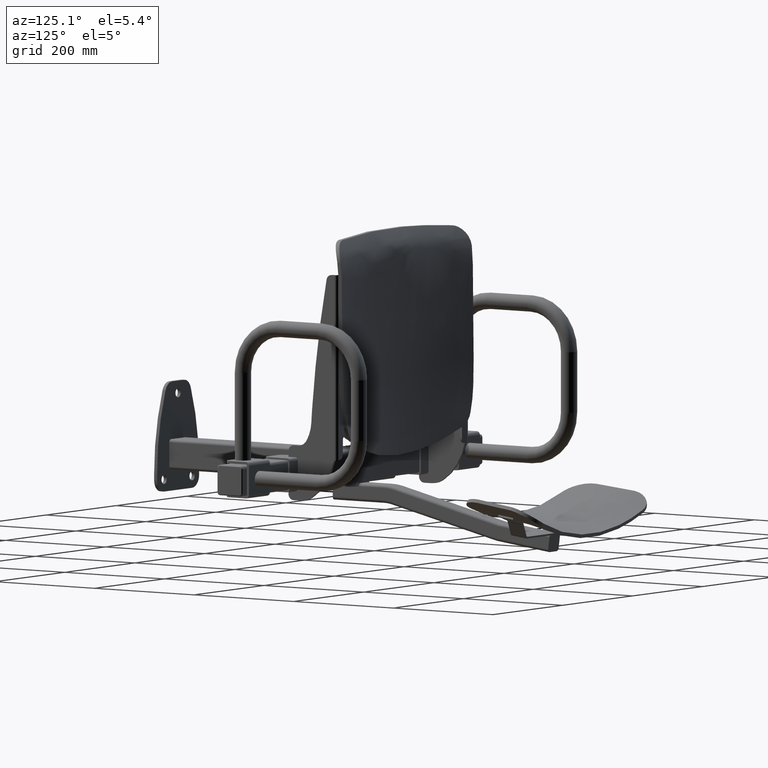
[diagram: clean part render]
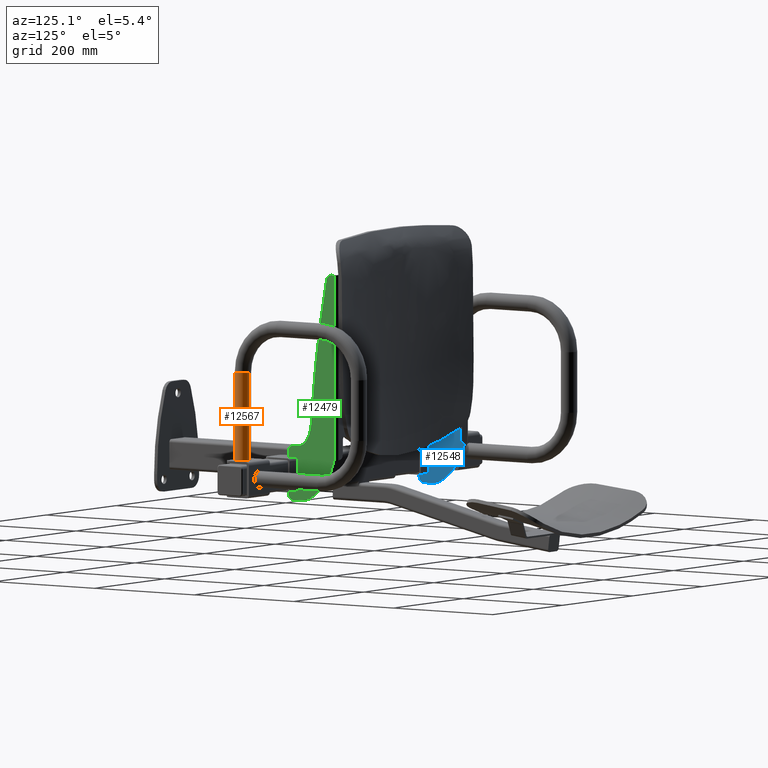
[diagram: same view with three faces highlighted in distinct colors, each labeled with its STEP entity id]
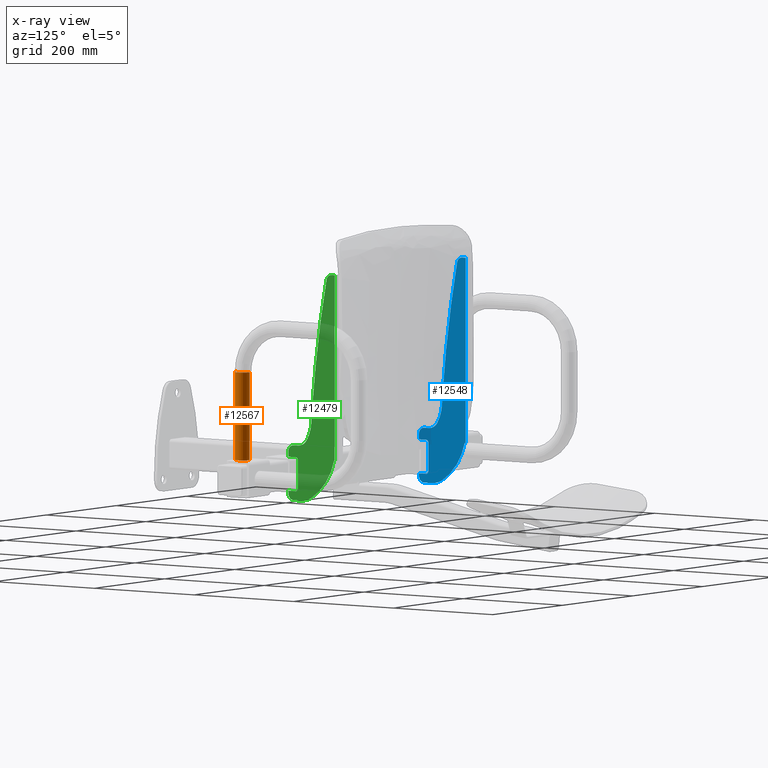
[diagram: x-ray of the same camera — body ghosted, the three highlighted faces saturated]
A machine part, auxiliary view with three faces highlighted in distinct colors.
The next image is the same camera in x-ray (body ghosted, the three faces saturated) — at least one of them is partly hidden behind the body in this view.
Their STEP definitions:

[orange] entity #12567 — the highlighted cylindrical surface (edge-blend (fillet) strip) has radius 13.5 mm, axis along (0, -0, -1).
#457 = AXIS2_PLACEMENT_3D ( 'NONE', #4366, #4362, #4364 ) ;
#3739 = EDGE_CURVE ( 'NONE', #13186, #13163, #6519, .T. ) ;
#3756 = EDGE_CURVE ( 'NONE', #13163, #13146, #6541, .T. ) ;
#3757 = EDGE_CURVE ( 'NONE', #5343, #13146, #6547, .T. ) ;
#3758 = EDGE_CURVE ( 'NONE', #13186, #5343, #6545, .T. ) ;
#4362 = DIRECTION ( 'NONE',  ( 0.0000000000000000000, -9.570888143320350200E-017, -1.000000000000000000 ) ) ;
#4364 = DIRECTION ( 'NONE',  ( 0.0000000000000000000, 1.000000000000000000, 0.0000000000000000000 ) ) ;
#4366 = CARTESIAN_POINT ( 'NONE',  ( 0.0000000000000000000, -28.99999999999999600, 174.9999999999994600 ) ) ;
#4793 = CARTESIAN_POINT ( 'NONE',  ( 1.653273178848928000E-015, -42.50000000000000700, 29.99999999999943900 ) ) ;
#4809 = CARTESIAN_POINT ( 'NONE',  ( 1.653273178848927300E-015, -42.49999999999999300, 174.9999999999989200 ) ) ;
#4832 = CARTESIAN_POINT ( 'NONE',  ( 0.0000000000000000000, -15.49999999999999800, 175.0000000000000300 ) ) ;
#5343 = VERTEX_POINT ( 'NONE', #15613 ) ;
#6254 = EDGE_LOOP ( 'NONE', ( #7528, #7527, #7526, #7525 ) ) ;
#6519 = CIRCLE ( 'NONE', #14111, 13.50000000000000000 ) ;
#6541 = LINE ( 'NONE', #6633, #6548 ) ;
#6545 = LINE ( 'NONE', #6644, #6551 ) ;
#6547 = CIRCLE ( 'NONE', #14118, 13.50000000000000000 ) ;
#6548 = VECTOR ( 'NONE', #6641, 1000.000000000000000 ) ;
#6551 = VECTOR ( 'NONE', #6639, 1000.000000000000000 ) ;
#6633 = CARTESIAN_POINT ( 'NONE',  ( 1.653273178848926900E-015, -42.49999999999999300, 174.9999999999994600 ) ) ;
#6639 = DIRECTION ( 'NONE',  ( 0.0000000000000000000, -9.570888143320350200E-017, -1.000000000000000000 ) ) ;
#6641 = DIRECTION ( 'NONE',  ( 0.0000000000000000000, -9.570888143320350200E-017, -1.000000000000000000 ) ) ;
#6644 = CARTESIAN_POINT ( 'NONE',  ( 0.0000000000000000000, -15.49999999999999800, 174.9999999999994600 ) ) ;
#6645 = CARTESIAN_POINT ( 'NONE',  ( 0.0000000000000000000, -29.00000000000001100, 30.00000000000000000 ) ) ;
#6646 = DIRECTION ( 'NONE',  ( 0.0000000000000000000, 4.133864410110875200E-014, -1.000000000000000000 ) ) ;
#6647 = DIRECTION ( 'NONE',  ( 0.0000000000000000000, 1.000000000000000000, 4.137636735292828500E-014 ) ) ;
#7525 = ORIENTED_EDGE ( 'NONE', *, *, #3758, .F. ) ;
#7526 = ORIENTED_EDGE ( 'NONE', *, *, #3757, .F. ) ;
#7527 = ORIENTED_EDGE ( 'NONE', *, *, #3756, .T. ) ;
#7528 = ORIENTED_EDGE ( 'NONE', *, *, #3739, .T. ) ;
#12567 = ADVANCED_FACE ( 'NONE', ( #13300 ), #13304, .T. ) ;
#13146 = VERTEX_POINT ( 'NONE', #4793 ) ;
#13163 = VERTEX_POINT ( 'NONE', #4809 ) ;
#13186 = VERTEX_POINT ( 'NONE', #4832 ) ;
#13300 = FACE_OUTER_BOUND ( 'NONE', #6254, .T. ) ;
#13304 = CYLINDRICAL_SURFACE ( 'NONE', #457, 13.50000000000000000 ) ;
#14111 = AXIS2_PLACEMENT_3D ( 'NONE', #22606, #22607, #22608 ) ;
#14118 = AXIS2_PLACEMENT_3D ( 'NONE', #6645, #6646, #6647 ) ;
#15613 = CARTESIAN_POINT ( 'NONE',  ( 0.0000000000000000000, -15.50000000000001200, 30.00000000000055800 ) ) ;
#22606 = CARTESIAN_POINT ( 'NONE',  ( 0.0000000000000000000, -28.99999999999999600, 174.9999999999994600 ) ) ;
#22607 = DIRECTION ( 'NONE',  ( 0.0000000000000000000, 4.133864410110875200E-014, -1.000000000000000000 ) ) ;
#22608 = DIRECTION ( 'NONE',  ( 0.0000000000000000000, 1.000000000000000000, 4.111937128241320600E-014 ) ) ;

[blue] entity #12548 — the highlighted planar face has unit normal (-1, 0, 0).
#436 = AXIS2_PLACEMENT_3D ( 'NONE', #4295, #4300, #4301 ) ;
#1841 = VERTEX_POINT ( 'NONE', #22451 ) ;
#1853 = VERTEX_POINT ( 'NONE', #22463 ) ;
#1856 = VERTEX_POINT ( 'NONE', #22466 ) ;
#1868 = VERTEX_POINT ( 'NONE', #22478 ) ;
#1872 = VERTEX_POINT ( 'NONE', #22482 ) ;
#1876 = VERTEX_POINT ( 'NONE', #22486 ) ;
#1878 = VERTEX_POINT ( 'NONE', #22488 ) ;
#1879 = VERTEX_POINT ( 'NONE', #22489 ) ;
#1881 = VERTEX_POINT ( 'NONE', #22491 ) ;
#3878 = LINE ( 'NONE', #12641, #3880 ) ;
#3879 = CIRCLE ( 'NONE', #6881, 10.00000000000000900 ) ;
#3880 = VECTOR ( 'NONE', #12642, 1000.000000000000000 ) ;
#3881 = CIRCLE ( 'NONE', #6882, 2000.000000000000000 ) ;
#3882 = CIRCLE ( 'NONE', #6883, 64.99999999999991500 ) ;
#3883 = CIRCLE ( 'NONE', #6884, 20.00000000000000400 ) ;
#3884 = LINE ( 'NONE', #12655, #3886 ) ;
#3885 = CIRCLE ( 'NONE', #6885, 10.00000000000000200 ) ;
#3886 = VECTOR ( 'NONE', #12656, 1000.000000000000000 ) ;
#3887 = LINE ( 'NONE', #12660, #3889 ) ;
#3888 = LINE ( 'NONE', #12670, #3891 ) ;
#3889 = VECTOR ( 'NONE', #12661, 1000.000000000000000 ) ;
#3890 = CIRCLE ( 'NONE', #6886, 5.000000000000000900 ) ;
#3891 = VECTOR ( 'NONE', #12671, 1000.000000000000000 ) ;
#3892 = LINE ( 'NONE', #12665, #3894 ) ;
#3893 = CIRCLE ( 'NONE', #6887, 5.000000000000000900 ) ;
#3894 = VECTOR ( 'NONE', #12666, 1000.000000000000000 ) ;
#3895 = LINE ( 'NONE', #12672, #3897 ) ;
#3896 = LINE ( 'NONE', #12682, #3899 ) ;
#3897 = VECTOR ( 'NONE', #12673, 1000.000000000000000 ) ;
#3898 = CIRCLE ( 'NONE', #6888, 10.00000000000000200 ) ;
#3899 = VECTOR ( 'NONE', #12683, 1000.000000000000000 ) ;
#3900 = LINE ( 'NONE', #12677, #3902 ) ;
#3901 = CIRCLE ( 'NONE', #6889, 40.00000000000000000 ) ;
#3902 = VECTOR ( 'NONE', #12678, 1000.000000000000000 ) ;
#3903 = CIRCLE ( 'NONE', #6890, 99.99999999999973000 ) ;
#4294 = PLANE ( 'NONE',  #436 ) ;
#4295 = CARTESIAN_POINT ( 'NONE',  ( -184.5000000000000000, 768.8487700016353300, 42.09000911109884400 ) ) ;
#4300 = DIRECTION ( 'NONE',  ( -1.000000000000000000, 0.0000000000000000000, 0.0000000000000000000 ) ) ;
#4301 = DIRECTION ( 'NONE',  ( 0.0000000000000000000, 0.0000000000000000000, 1.000000000000000000 ) ) ;
#4957 = CARTESIAN_POINT ( 'NONE',  ( -184.5000000000000000, 768.8487700016353300, 42.09000911109884400 ) ) ;
#4958 = DIRECTION ( 'NONE',  ( -1.000000000000000000, -0.0000000000000000000, -0.0000000000000000000 ) ) ;
#4959 = DIRECTION ( 'NONE',  ( 0.0000000000000000000, 0.0000000000000000000, 1.000000000000000000 ) ) ;
#5078 = CARTESIAN_POINT ( 'NONE',  ( -184.5000000000000000, -56.52131254699092000, 45.00000000000002100 ) ) ;
#5107 = CARTESIAN_POINT ( 'NONE',  ( -184.5000000000000000, -75.99999999999998600, 35.00000000000000700 ) ) ;
#5109 = CARTESIAN_POINT ( 'NONE',  ( -184.5000000000000000, -66.00000000000000000, -45.49999999999999300 ) ) ;
#5112 = CARTESIAN_POINT ( 'NONE',  ( -184.5000000000000000, -75.99999999999998600, 25.50000000000000700 ) ) ;
#5114 = CARTESIAN_POINT ( 'NONE',  ( -184.5000000000000000, -62.00000000000000000, 25.50000000000000400 ) ) ;
#5629 = CARTESIAN_POINT ( 'NONE',  ( -184.5000000000000000, 0.4346393196845710300, 321.8704615215368700 ) ) ;
#5639 = CARTESIAN_POINT ( 'NONE',  ( -184.4999999999999400, 10.25815059093826400, 330.0000000000000000 ) ) ;
#5668 = CARTESIAN_POINT ( 'NONE',  ( -184.5000000000000000, -57.00000000000000000, -25.49999999999999300 ) ) ;
#5669 = CARTESIAN_POINT ( 'NONE',  ( -184.4999999999999400, 17.61484380720982700, 330.0000000000000000 ) ) ;
#5689 = CARTESIAN_POINT ( 'NONE',  ( -184.5000000000000000, -29.85772430000087500, -39.60058345625546400 ) ) ;
#5693 = CARTESIAN_POINT ( 'NONE',  ( -184.5000000000000000, -76.00000000000000000, -30.49999999999998900 ) ) ;
#5698 = CARTESIAN_POINT ( 'NONE',  ( -184.5000000000000000, 15.49999999999968000, 24.00000000000002100 ) ) ;
#5953 = EDGE_CURVE ( 'NONE', #1876, #7651, #18069, .T. ) ;
#5954 = EDGE_CURVE ( 'NONE', #1876, #1872, #18077, .T. ) ;
#5955 = EDGE_CURVE ( 'NONE', #1872, #7622, #18063, .T. ) ;
#5997 = EDGE_CURVE ( 'NONE', #7592, #7622, #3878, .T. ) ;
#5998 = EDGE_CURVE ( 'NONE', #7592, #7582, #3879, .T. ) ;
#5999 = EDGE_CURVE ( 'NONE', #7582, #1881, #3881, .T. ) ;
#6000 = EDGE_CURVE ( 'NONE', #7849, #1878, #3882, .T. ) ;
#6001 = EDGE_CURVE ( 'NONE', #1878, #21709, #3883, .T. ) ;
#6002 = EDGE_CURVE ( 'NONE', #21709, #1856, #3884, .T. ) ;
#6003 = EDGE_CURVE ( 'NONE', #1856, #21738, #3885, .T. ) ;
#6004 = EDGE_CURVE ( 'NONE', #21738, #21743, #3887, .T. ) ;
#6005 = EDGE_CURVE ( 'NONE', #21743, #21745, #3888, .T. ) ;
#6006 = EDGE_CURVE ( 'NONE', #21745, #1841, #3890, .T. ) ;
#6007 = EDGE_CURVE ( 'NONE', #1841, #7621, #3892, .T. ) ;
#6008 = EDGE_CURVE ( 'NONE', #7621, #1853, #3893, .T. ) ;
#6009 = EDGE_CURVE ( 'NONE', #1853, #7646, #3895, .T. ) ;
#6010 = EDGE_CURVE ( 'NONE', #7646, #1879, #3896, .T. ) ;
#6011 = EDGE_CURVE ( 'NONE', #1879, #21740, #3898, .T. ) ;
#6012 = EDGE_CURVE ( 'NONE', #21740, #1868, #3900, .T. ) ;
#6013 = EDGE_CURVE ( 'NONE', #1868, #7642, #3901, .T. ) ;
#6014 = EDGE_CURVE ( 'NONE', #7642, #7651, #3903, .T. ) ;
#6881 = AXIS2_PLACEMENT_3D ( 'NONE', #12649, #12650, #12651 ) ;
#6882 = AXIS2_PLACEMENT_3D ( 'NONE', #12652, #12653, #12654 ) ;
#6883 = AXIS2_PLACEMENT_3D ( 'NONE', #12657, #12658, #12659 ) ;
#6884 = AXIS2_PLACEMENT_3D ( 'NONE', #12662, #12663, #12664 ) ;
#6885 = AXIS2_PLACEMENT_3D ( 'NONE', #12667, #12668, #12669 ) ;
#6886 = AXIS2_PLACEMENT_3D ( 'NONE', #12674, #12675, #12676 ) ;
#6887 = AXIS2_PLACEMENT_3D ( 'NONE', #12679, #12680, #12681 ) ;
#6888 = AXIS2_PLACEMENT_3D ( 'NONE', #12684, #12685, #12686 ) ;
#6889 = AXIS2_PLACEMENT_3D ( 'NONE', #12687, #12688, #12689 ) ;
#6890 = AXIS2_PLACEMENT_3D ( 'NONE', #12690, #12691, #12692 ) ;
#7428 = CARTESIAN_POINT ( 'NONE',  ( -184.5000000000000000, -29.99960903027743000, 85.00000000000001400 ) ) ;
#7582 = VERTEX_POINT ( 'NONE', #5629 ) ;
#7592 = VERTEX_POINT ( 'NONE', #5639 ) ;
#7621 = VERTEX_POINT ( 'NONE', #5668 ) ;
#7622 = VERTEX_POINT ( 'NONE', #5669 ) ;
#7642 = VERTEX_POINT ( 'NONE', #5689 ) ;
#7646 = VERTEX_POINT ( 'NONE', #5693 ) ;
#7651 = VERTEX_POINT ( 'NONE', #5698 ) ;
#7849 = VERTEX_POINT ( 'NONE', #7428 ) ;
#12548 = ADVANCED_FACE ( 'NONE', ( #13256 ), #4294, .F. ) ;
#12641 = CARTESIAN_POINT ( 'NONE',  ( -184.4999999999999400, 1.999999999999890800, 330.0000000000000000 ) ) ;
#12642 = DIRECTION ( 'NONE',  ( 0.0000000000000000000, 1.000000000000000000, 0.0000000000000000000 ) ) ;
#12649 = CARTESIAN_POINT ( 'NONE',  ( -184.5000000000000000, 10.25815059093826400, 320.0000000000000000 ) ) ;
#12650 = DIRECTION ( 'NONE',  ( 1.000000000000000000, -0.0000000000000000000, -0.0000000000000000000 ) ) ;
#12651 = DIRECTION ( 'NONE',  ( 0.0000000000000000000, 0.0000000000000000000, 1.000000000000000000 ) ) ;
#12652 = CARTESIAN_POINT ( 'NONE',  ( -184.5000000000000000, 1965.136893570438600, -52.22184278584374100 ) ) ;
#12653 = DIRECTION ( 'NONE',  ( 1.000000000000000000, -0.0000000000000000000, -0.0000000000000000000 ) ) ;
#12654 = DIRECTION ( 'NONE',  ( 0.0000000000000000000, 0.0000000000000000000, 1.000000000000000000 ) ) ;
#12655 = CARTESIAN_POINT ( 'NONE',  ( -184.5000000000000000, -75.99999999999998600, 45.00000000000001400 ) ) ;
#12656 = DIRECTION ( 'NONE',  ( 0.0000000000000000000, -1.000000000000000000, -2.359788892426816400E-016 ) ) ;
#12657 = CARTESIAN_POINT ( 'NONE',  ( -184.5000000000000000, -94.90603982662018700, 88.48643675972323300 ) ) ;
#12658 = DIRECTION ( 'NONE',  ( -1.000000000000000000, 0.0000000000000000000, 0.0000000000000000000 ) ) ;
#12659 = DIRECTION ( 'NONE',  ( 0.0000000000000000000, 0.0000000000000000000, 1.000000000000000000 ) ) ;
#12660 = CARTESIAN_POINT ( 'NONE',  ( -184.5000000000000000, -75.99999999999998600, 25.50000000000000700 ) ) ;
#12661 = DIRECTION ( 'NONE',  ( 0.0000000000000000000, 0.0000000000000000000, -1.000000000000000000 ) ) ;
#12662 = CARTESIAN_POINT ( 'NONE',  ( -184.5000000000000000, -56.52131254699092700, 65.00000000000002800 ) ) ;
#12663 = DIRECTION ( 'NONE',  ( -1.000000000000000000, 0.0000000000000000000, 0.0000000000000000000 ) ) ;
#12664 = DIRECTION ( 'NONE',  ( 0.0000000000000000000, 0.0000000000000000000, 1.000000000000000000 ) ) ;
#12665 = CARTESIAN_POINT ( 'NONE',  ( -184.5000000000000000, -57.00000000000000000, 25.50000000000000400 ) ) ;
#12666 = DIRECTION ( 'NONE',  ( 0.0000000000000000000, 0.0000000000000000000, -1.000000000000000000 ) ) ;
#12667 = CARTESIAN_POINT ( 'NONE',  ( -184.5000000000000000, -65.99999999999998600, 35.00000000000000700 ) ) ;
#12668 = DIRECTION ( 'NONE',  ( 1.000000000000000000, -0.0000000000000000000, -0.0000000000000000000 ) ) ;
#12669 = DIRECTION ( 'NONE',  ( 0.0000000000000000000, 0.0000000000000000000, 1.000000000000000000 ) ) ;
#12670 = CARTESIAN_POINT ( 'NONE',  ( -184.5000000000000000, -75.99999999999998600, 25.50000000000000700 ) ) ;
#12671 = DIRECTION ( 'NONE',  ( 0.0000000000000000000, 1.000000000000000000, -1.826024711554535900E-016 ) ) ;
#12672 = CARTESIAN_POINT ( 'NONE',  ( -184.5000000000000000, -57.00000000000000000, -30.49999999999999600 ) ) ;
#12673 = DIRECTION ( 'NONE',  ( 0.0000000000000000000, -1.000000000000000000, 3.652049423109068300E-016 ) ) ;
#12674 = CARTESIAN_POINT ( 'NONE',  ( -184.5000000000000000, -62.00000000000000000, 20.50000000000000400 ) ) ;
#12675 = DIRECTION ( 'NONE',  ( -1.000000000000000000, 0.0000000000000000000, 0.0000000000000000000 ) ) ;
#12676 = DIRECTION ( 'NONE',  ( 0.0000000000000000000, 0.0000000000000000000, 1.000000000000000000 ) ) ;
#12677 = CARTESIAN_POINT ( 'NONE',  ( -184.5000000000000000, -76.00000000000000000, -45.49999999999999300 ) ) ;
#12678 = DIRECTION ( 'NONE',  ( 0.0000000000000000000, 1.000000000000000000, 0.0000000000000000000 ) ) ;
#12679 = CARTESIAN_POINT ( 'NONE',  ( -184.5000000000000000, -62.00000000000000000, -25.49999999999999300 ) ) ;
#12680 = DIRECTION ( 'NONE',  ( -1.000000000000000000, 0.0000000000000000000, 0.0000000000000000000 ) ) ;
#12681 = DIRECTION ( 'NONE',  ( 0.0000000000000000000, 0.0000000000000000000, 1.000000000000000000 ) ) ;
#12682 = CARTESIAN_POINT ( 'NONE',  ( -184.5000000000000000, -76.00000000000000000, -30.49999999999998900 ) ) ;
#12683 = DIRECTION ( 'NONE',  ( 0.0000000000000000000, 0.0000000000000000000, -1.000000000000000000 ) ) ;
#12684 = CARTESIAN_POINT ( 'NONE',  ( -184.5000000000000000, -66.00000000000000000, -35.49999999999999300 ) ) ;
#12685 = DIRECTION ( 'NONE',  ( 1.000000000000000000, -0.0000000000000000000, -0.0000000000000000000 ) ) ;
#12686 = DIRECTION ( 'NONE',  ( 0.0000000000000000000, 0.0000000000000000000, 1.000000000000000000 ) ) ;
#12687 = CARTESIAN_POINT ( 'NONE',  ( -184.5000000000000000, -50.76586166187400600, -5.499999999999991100 ) ) ;
#12688 = DIRECTION ( 'NONE',  ( 1.000000000000000000, -0.0000000000000000000, -0.0000000000000000000 ) ) ;
#12689 = DIRECTION ( 'NONE',  ( 0.0000000000000000000, 0.0000000000000000000, 1.000000000000000000 ) ) ;
#12690 = CARTESIAN_POINT ( 'NONE',  ( -184.5000000000000000, -82.12806770468355900, 45.65087518438299700 ) ) ;
#12691 = DIRECTION ( 'NONE',  ( 1.000000000000000000, -0.0000000000000000000, -0.0000000000000000000 ) ) ;
#12692 = DIRECTION ( 'NONE',  ( 0.0000000000000000000, 8.326672684688696700E-016, 1.000000000000000000 ) ) ;
#13052 = ORIENTED_EDGE ( 'NONE', *, *, #5955, .T. ) ;
#13053 = ORIENTED_EDGE ( 'NONE', *, *, #5954, .T. ) ;
#13054 = ORIENTED_EDGE ( 'NONE', *, *, #5953, .F. ) ;
#13055 = ORIENTED_EDGE ( 'NONE', *, *, #6014, .T. ) ;
#13056 = ORIENTED_EDGE ( 'NONE', *, *, #6013, .T. ) ;
#13057 = ORIENTED_EDGE ( 'NONE', *, *, #6012, .T. ) ;
#13058 = ORIENTED_EDGE ( 'NONE', *, *, #6011, .T. ) ;
#13059 = ORIENTED_EDGE ( 'NONE', *, *, #6010, .T. ) ;
#13060 = ORIENTED_EDGE ( 'NONE', *, *, #6009, .T. ) ;
#13061 = ORIENTED_EDGE ( 'NONE', *, *, #6008, .T. ) ;
#13062 = ORIENTED_EDGE ( 'NONE', *, *, #6007, .T. ) ;
#13063 = ORIENTED_EDGE ( 'NONE', *, *, #6006, .T. ) ;
#13064 = ORIENTED_EDGE ( 'NONE', *, *, #6005, .T. ) ;
#13065 = ORIENTED_EDGE ( 'NONE', *, *, #6004, .T. ) ;
#13066 = ORIENTED_EDGE ( 'NONE', *, *, #6003, .T. ) ;
#13067 = ORIENTED_EDGE ( 'NONE', *, *, #6002, .T. ) ;
#13068 = ORIENTED_EDGE ( 'NONE', *, *, #6001, .T. ) ;
#13069 = ORIENTED_EDGE ( 'NONE', *, *, #6000, .T. ) ;
#13070 = ORIENTED_EDGE ( 'NONE', *, *, #14055, .F. ) ;
#13071 = ORIENTED_EDGE ( 'NONE', *, *, #5999, .T. ) ;
#13072 = ORIENTED_EDGE ( 'NONE', *, *, #5998, .T. ) ;
#13073 = ORIENTED_EDGE ( 'NONE', *, *, #5997, .F. ) ;
#13256 = FACE_OUTER_BOUND ( 'NONE', #13846, .T. ) ;
#13513 = CIRCLE ( 'NONE', #13608, 800.0000000000000000 ) ;
#13608 = AXIS2_PLACEMENT_3D ( 'NONE', #4957, #4958, #4959 ) ;
#13846 = EDGE_LOOP ( 'NONE', ( #13073, #13072, #13071, #13070, #13069, #13068, #13067, #13066, #13065, #13064, #13063, #13062, #13061, #13060, #13059, #13058, #13057, #13056, #13055, #13054, #13053, #13052 ) ) ;
#14055 = EDGE_CURVE ( 'NONE', #7849, #1881, #13513, .T. ) ;
#15621 = CARTESIAN_POINT ( 'NONE',  ( -184.5000000000000000, 17.61484380720990100, 42.09000911109884400 ) ) ;
#15622 = CARTESIAN_POINT ( 'NONE',  ( -184.5000000000000000, 17.61484380720990100, 42.09000911109884400 ) ) ;
#15625 = CARTESIAN_POINT ( 'NONE',  ( -184.5000000000000000, -45.00000000000000000, 24.00000000000002100 ) ) ;
#15627 = DIRECTION ( 'NONE',  ( 0.0000000000000000000, -1.000000000000000000, 0.0000000000000000000 ) ) ;
#15628 = DIRECTION ( 'NONE',  ( 0.0000000000000000000, 0.0000000000000000000, 1.000000000000000000 ) ) ;
#15630 = DIRECTION ( 'NONE',  ( 0.0000000000000000000, 0.0000000000000000000, 1.000000000000000000 ) ) ;
#18058 = VECTOR ( 'NONE', #15628, 1000.000000000000000 ) ;
#18059 = VECTOR ( 'NONE', #15627, 1000.000000000000000 ) ;
#18063 = LINE ( 'NONE', #15622, #18081 ) ;
#18069 = LINE ( 'NONE', #15625, #18059 ) ;
#18077 = LINE ( 'NONE', #15621, #18058 ) ;
#18081 = VECTOR ( 'NONE', #15630, 1000.000000000000000 ) ;
#21709 = VERTEX_POINT ( 'NONE', #5078 ) ;
#21738 = VERTEX_POINT ( 'NONE', #5107 ) ;
#21740 = VERTEX_POINT ( 'NONE', #5109 ) ;
#21743 = VERTEX_POINT ( 'NONE', #5112 ) ;
#21745 = VERTEX_POINT ( 'NONE', #5114 ) ;
#22451 = CARTESIAN_POINT ( 'NONE',  ( -184.5000000000000000, -57.00000000000000000, 20.50000000000000400 ) ) ;
#22463 = CARTESIAN_POINT ( 'NONE',  ( -184.5000000000000000, -62.00000000000000000, -30.49999999999999300 ) ) ;
#22466 = CARTESIAN_POINT ( 'NONE',  ( -184.5000000000000000, -65.99999999999998600, 45.00000000000001400 ) ) ;
#22478 = CARTESIAN_POINT ( 'NONE',  ( -184.5000000000000000, -50.76586166187400600, -45.49999999999999300 ) ) ;
#22482 = CARTESIAN_POINT ( 'NONE',  ( -184.5000000000000000, 17.61484380720990100, 24.28409515809885400 ) ) ;
#22486 = CARTESIAN_POINT ( 'NONE',  ( -184.5000000000000000, 17.61484380720980500, 24.00000000000002100 ) ) ;
#22488 = CARTESIAN_POINT ( 'NONE',  ( -184.5000000000000000, -39.46143375604454200, 54.56158366234524200 ) ) ;
#22489 = CARTESIAN_POINT ( 'NONE',  ( -184.5000000000000000, -76.00000000000000000, -35.49999999999999300 ) ) ;
#22491 = CARTESIAN_POINT ( 'NONE',  ( -184.5000000000000000, -28.67664571090134000, 104.9645770423940000 ) ) ;

[green] entity #12479 — the highlighted planar face has unit normal (1, 0, 0).
#266 = FACE_OUTER_BOUND ( 'NONE', #6264, .T. ) ;
#335 = AXIS2_PLACEMENT_3D ( 'NONE', #20912, #20917, #20918 ) ;
#2406 = ORIENTED_EDGE ( 'NONE', *, *, #6036, .T. ) ;
#2412 = ORIENTED_EDGE ( 'NONE', *, *, #6046, .F. ) ;
#2434 = ORIENTED_EDGE ( 'NONE', *, *, #6044, .F. ) ;
#2438 = ORIENTED_EDGE ( 'NONE', *, *, #12170, .F. ) ;
#2501 = ORIENTED_EDGE ( 'NONE', *, *, #6048, .F. ) ;
#2512 = ORIENTED_EDGE ( 'NONE', *, *, #6047, .F. ) ;
#2518 = ORIENTED_EDGE ( 'NONE', *, *, #12172, .F. ) ;
#2605 = ORIENTED_EDGE ( 'NONE', *, *, #12177, .F. ) ;
#2607 = ORIENTED_EDGE ( 'NONE', *, *, #12176, .F. ) ;
#2622 = ORIENTED_EDGE ( 'NONE', *, *, #6043, .F. ) ;
#2625 = ORIENTED_EDGE ( 'NONE', *, *, #12178, .T. ) ;
#3923 = CIRCLE ( 'NONE', #6910, 800.0000000000000000 ) ;
#3930 = LINE ( 'NONE', #12768, #3936 ) ;
#3933 = CIRCLE ( 'NONE', #6914, 2000.000000000000000 ) ;
#3935 = CIRCLE ( 'NONE', #6913, 10.00000000000000900 ) ;
#3936 = VECTOR ( 'NONE', #12772, 1000.000000000000000 ) ;
#3937 = CIRCLE ( 'NONE', #6916, 20.00000000000000400 ) ;
#3938 = CIRCLE ( 'NONE', #6915, 64.99999999999991500 ) ;
#3939 = LINE ( 'NONE', #12783, #3942 ) ;
#3940 = CIRCLE ( 'NONE', #6917, 10.00000000000000200 ) ;
#3942 = VECTOR ( 'NONE', #12773, 1000.000000000000000 ) ;
#4985 = CARTESIAN_POINT ( 'NONE',  ( 188.5000000000000000, 15.49999999999939600, 24.00000000000002100 ) ) ;
#4989 = CARTESIAN_POINT ( 'NONE',  ( 188.5000000000000000, -28.67664571090134000, 104.9645770423940000 ) ) ;
#4990 = CARTESIAN_POINT ( 'NONE',  ( 188.5000000000000000, -76.00000000000000000, -35.49999999999999300 ) ) ;
#4991 = CARTESIAN_POINT ( 'NONE',  ( 188.5000000000000000, 16.51392966436117100, 330.0000000000000000 ) ) ;
#4996 = CARTESIAN_POINT ( 'NONE',  ( 188.5000000000000000, 10.25815059093826400, 330.0000000000000000 ) ) ;
#4997 = CARTESIAN_POINT ( 'NONE',  ( 188.5000000000000000, -76.00000000000000000, -30.49999999999998900 ) ) ;
#4998 = CARTESIAN_POINT ( 'NONE',  ( 188.5000000000000000, -39.46143375604454200, 54.56158366234524200 ) ) ;
#4999 = CARTESIAN_POINT ( 'NONE',  ( 188.5000000000000000, -62.00000000000000000, 25.50000000000000400 ) ) ;
#5001 = CARTESIAN_POINT ( 'NONE',  ( 188.5000000000000000, -57.00000000000000000, 20.50000000000000400 ) ) ;
#5003 = CARTESIAN_POINT ( 'NONE',  ( 188.5000000000000000, -29.85772430000087500, -39.60058345625546400 ) ) ;
#5007 = CARTESIAN_POINT ( 'NONE',  ( 188.5000000000000000, -62.00000000000000000, -30.49999999999999300 ) ) ;
#5010 = CARTESIAN_POINT ( 'NONE',  ( 188.5000000000000000, -56.52131254699092000, 45.00000000000002100 ) ) ;
#5012 = CARTESIAN_POINT ( 'NONE',  ( 188.5000000000000000, -75.99999999999998600, 25.50000000000000700 ) ) ;
#5013 = CARTESIAN_POINT ( 'NONE',  ( 188.5000000000000000, -50.76586166187400600, -45.49999999999999300 ) ) ;
#5015 = CARTESIAN_POINT ( 'NONE',  ( 188.5000000000000000, -57.00000000000000000, -25.49999999999999300 ) ) ;
#5016 = CARTESIAN_POINT ( 'NONE',  ( 188.5000000000000000, -29.99960903027743000, 85.00000000000001400 ) ) ;
#5021 = CARTESIAN_POINT ( 'NONE',  ( 188.5000000000000000, -66.00000000000000000, -45.49999999999999300 ) ) ;
#5036 = CARTESIAN_POINT ( 'NONE',  ( 188.5000000000000000, 16.51392966436117500, 24.00000000000002100 ) ) ;
#5866 = AXIS2_PLACEMENT_3D ( 'NONE', #9475, #9476, #9477 ) ;
#5867 = AXIS2_PLACEMENT_3D ( 'NONE', #9480, #9481, #9482 ) ;
#5868 = AXIS2_PLACEMENT_3D ( 'NONE', #9486, #9487, #9488 ) ;
#5869 = AXIS2_PLACEMENT_3D ( 'NONE', #9490, #9491, #9492 ) ;
#5870 = AXIS2_PLACEMENT_3D ( 'NONE', #9495, #9496, #9497 ) ;
#6036 = EDGE_CURVE ( 'NONE', #15786, #15805, #3923, .T. ) ;
#6042 = EDGE_CURVE ( 'NONE', #15784, #15783, #3930, .T. ) ;
#6043 = EDGE_CURVE ( 'NONE', #9815, #15783, #3935, .T. ) ;
#6044 = EDGE_CURVE ( 'NONE', #15786, #9815, #3933, .T. ) ;
#6045 = EDGE_CURVE ( 'NONE', #15787, #15805, #3938, .T. ) ;
#6046 = EDGE_CURVE ( 'NONE', #15799, #15787, #3937, .T. ) ;
#6047 = EDGE_CURVE ( 'NONE', #9797, #15799, #3939, .T. ) ;
#6048 = EDGE_CURVE ( 'NONE', #9777, #9797, #3940, .T. ) ;
#6264 = EDGE_LOOP ( 'NONE', ( #13826, #2622, #2434, #2406, #13827, #2412, #2512, #2501, #13762, #13831, #13764, #2438, #13763, #2518, #7069, #7071, #7076, #2607, #2605, #2625, #7122 ) ) ;
#6910 = AXIS2_PLACEMENT_3D ( 'NONE', #12758, #12759, #12760 ) ;
#6913 = AXIS2_PLACEMENT_3D ( 'NONE', #12774, #12775, #12776 ) ;
#6914 = AXIS2_PLACEMENT_3D ( 'NONE', #12777, #12778, #12779 ) ;
#6915 = AXIS2_PLACEMENT_3D ( 'NONE', #12780, #12781, #12782 ) ;
#6916 = AXIS2_PLACEMENT_3D ( 'NONE', #12784, #12785, #12786 ) ;
#6917 = AXIS2_PLACEMENT_3D ( 'NONE', #12787, #12788, #12789 ) ;
#7069 = ORIENTED_EDGE ( 'NONE', *, *, #12173, .F. ) ;
#7071 = ORIENTED_EDGE ( 'NONE', *, *, #12174, .F. ) ;
#7076 = ORIENTED_EDGE ( 'NONE', *, *, #12175, .F. ) ;
#7122 = ORIENTED_EDGE ( 'NONE', *, *, #12179, .F. ) ;
#7467 = CARTESIAN_POINT ( 'NONE',  ( 188.5000000000000000, -75.99999999999998600, 35.00000000000000700 ) ) ;
#7476 = CARTESIAN_POINT ( 'NONE',  ( 188.5000000000000000, -65.99999999999998600, 45.00000000000001400 ) ) ;
#7484 = CARTESIAN_POINT ( 'NONE',  ( 188.5000000000000000, 0.4346393196845710300, 321.8704615215368700 ) ) ;
#9468 = CARTESIAN_POINT ( 'NONE',  ( 188.5000000000000000, -75.99999999999998600, 25.50000000000000700 ) ) ;
#9469 = DIRECTION ( 'NONE',  ( 0.0000000000000000000, 0.0000000000000000000, 1.000000000000000000 ) ) ;
#9470 = CARTESIAN_POINT ( 'NONE',  ( 188.5000000000000000, -75.99999999999998600, 25.50000000000000700 ) ) ;
#9471 = DIRECTION ( 'NONE',  ( 0.0000000000000000000, 0.0000000000000000000, 1.000000000000000000 ) ) ;
#9472 = DIRECTION ( 'NONE',  ( 0.0000000000000000000, -1.000000000000000000, 1.826024711554535900E-016 ) ) ;
#9473 = DIRECTION ( 'NONE',  ( 0.0000000000000000000, 1.000000000000000000, -3.652049423109068300E-016 ) ) ;
#9474 = CARTESIAN_POINT ( 'NONE',  ( 188.5000000000000000, -57.00000000000000000, 25.50000000000000400 ) ) ;
#9475 = CARTESIAN_POINT ( 'NONE',  ( 188.5000000000000000, -62.00000000000000000, 20.50000000000000400 ) ) ;
#9476 = DIRECTION ( 'NONE',  ( 1.000000000000000000, 0.0000000000000000000, 0.0000000000000000000 ) ) ;
#9477 = DIRECTION ( 'NONE',  ( 0.0000000000000000000, 0.0000000000000000000, 1.000000000000000000 ) ) ;
#9478 = CARTESIAN_POINT ( 'NONE',  ( 188.5000000000000000, -57.00000000000000000, -30.49999999999999600 ) ) ;
#9479 = DIRECTION ( 'NONE',  ( 0.0000000000000000000, -1.000000000000000000, -0.0000000000000000000 ) ) ;
#9480 = CARTESIAN_POINT ( 'NONE',  ( 188.5000000000000000, -62.00000000000000000, -25.49999999999999300 ) ) ;
#9481 = DIRECTION ( 'NONE',  ( 1.000000000000000000, 0.0000000000000000000, 0.0000000000000000000 ) ) ;
#9482 = DIRECTION ( 'NONE',  ( 0.0000000000000000000, 0.0000000000000000000, 1.000000000000000000 ) ) ;
#9483 = CARTESIAN_POINT ( 'NONE',  ( 188.5000000000000000, -76.00000000000000000, -30.49999999999998900 ) ) ;
#9484 = CARTESIAN_POINT ( 'NONE',  ( 188.5000000000000000, -76.00000000000000000, -45.49999999999999300 ) ) ;
#9485 = DIRECTION ( 'NONE',  ( 0.0000000000000000000, 0.0000000000000000000, 1.000000000000000000 ) ) ;
#9486 = CARTESIAN_POINT ( 'NONE',  ( 188.5000000000000000, -66.00000000000000000, -35.49999999999999300 ) ) ;
#9487 = DIRECTION ( 'NONE',  ( -1.000000000000000000, -0.0000000000000000000, -0.0000000000000000000 ) ) ;
#9488 = DIRECTION ( 'NONE',  ( 0.0000000000000000000, 0.0000000000000000000, 1.000000000000000000 ) ) ;
#9489 = DIRECTION ( 'NONE',  ( 0.0000000000000000000, 1.000000000000000000, 0.0000000000000000000 ) ) ;
#9490 = CARTESIAN_POINT ( 'NONE',  ( 188.5000000000000000, -50.76586166187400600, -5.499999999999991100 ) ) ;
#9491 = DIRECTION ( 'NONE',  ( -1.000000000000000000, -0.0000000000000000000, -0.0000000000000000000 ) ) ;
#9492 = DIRECTION ( 'NONE',  ( 0.0000000000000000000, 0.0000000000000000000, 1.000000000000000000 ) ) ;
#9494 = CARTESIAN_POINT ( 'NONE',  ( 188.5000000000000000, -45.00000000000000000, 24.00000000000002100 ) ) ;
#9495 = CARTESIAN_POINT ( 'NONE',  ( 188.5000000000000000, -82.12806770468355900, 45.65087518438299700 ) ) ;
#9496 = DIRECTION ( 'NONE',  ( -1.000000000000000000, -0.0000000000000000000, -0.0000000000000000000 ) ) ;
#9497 = DIRECTION ( 'NONE',  ( 0.0000000000000000000, 0.0000000000000000000, 1.000000000000000000 ) ) ;
#9498 = CARTESIAN_POINT ( 'NONE',  ( 188.5000000000000000, 16.51392966436117100, 24.00000000000002100 ) ) ;
#9499 = DIRECTION ( 'NONE',  ( -0.0000000000000000000, -0.0000000000000000000, -1.000000000000000000 ) ) ;
#9777 = VERTEX_POINT ( 'NONE', #7467 ) ;
#9797 = VERTEX_POINT ( 'NONE', #7476 ) ;
#9815 = VERTEX_POINT ( 'NONE', #7484 ) ;
#12167 = EDGE_CURVE ( 'NONE', #15801, #9777, #18155, .T. ) ;
#12168 = EDGE_CURVE ( 'NONE', #15788, #15801, #18200, .T. ) ;
#12169 = EDGE_CURVE ( 'NONE', #15790, #15788, #18196, .T. ) ;
#12170 = EDGE_CURVE ( 'NONE', #15804, #15790, #18198, .T. ) ;
#12171 = EDGE_CURVE ( 'NONE', #15796, #15804, #18195, .T. ) ;
#12172 = EDGE_CURVE ( 'NONE', #15785, #15796, #18202, .T. ) ;
#12173 = EDGE_CURVE ( 'NONE', #15779, #15785, #18203, .T. ) ;
#12174 = EDGE_CURVE ( 'NONE', #15810, #15779, #18199, .T. ) ;
#12175 = EDGE_CURVE ( 'NONE', #15802, #15810, #18207, .T. ) ;
#12176 = EDGE_CURVE ( 'NONE', #15792, #15802, #18205, .T. ) ;
#12177 = EDGE_CURVE ( 'NONE', #15780, #15792, #18210, .T. ) ;
#12178 = EDGE_CURVE ( 'NONE', #15780, #21663, #18208, .T. ) ;
#12179 = EDGE_CURVE ( 'NONE', #15784, #21663, #18212, .T. ) ;
#12479 = ADVANCED_FACE ( 'NONE', ( #266 ), #20911, .T. ) ;
#12758 = CARTESIAN_POINT ( 'NONE',  ( 188.5000000000000000, 768.8487700016353300, 42.09000911109884400 ) ) ;
#12759 = DIRECTION ( 'NONE',  ( 1.000000000000000000, -0.0000000000000000000, -0.0000000000000000000 ) ) ;
#12760 = DIRECTION ( 'NONE',  ( 0.0000000000000000000, 0.0000000000000000000, 1.000000000000000000 ) ) ;
#12768 = CARTESIAN_POINT ( 'NONE',  ( 188.5000000000000000, 17.99999999999997200, 330.0000000000000000 ) ) ;
#12772 = DIRECTION ( 'NONE',  ( 0.0000000000000000000, -1.000000000000000000, 0.0000000000000000000 ) ) ;
#12773 = DIRECTION ( 'NONE',  ( 0.0000000000000000000, 1.000000000000000000, 2.359788892426816400E-016 ) ) ;
#12774 = CARTESIAN_POINT ( 'NONE',  ( 188.5000000000000000, 10.25815059093826400, 320.0000000000000000 ) ) ;
#12775 = DIRECTION ( 'NONE',  ( -1.000000000000000000, -0.0000000000000000000, -0.0000000000000000000 ) ) ;
#12776 = DIRECTION ( 'NONE',  ( 0.0000000000000000000, 0.0000000000000000000, 1.000000000000000000 ) ) ;
#12777 = CARTESIAN_POINT ( 'NONE',  ( 188.5000000000000000, 1965.136893570438600, -52.22184278584374100 ) ) ;
#12778 = DIRECTION ( 'NONE',  ( -1.000000000000000000, 0.0000000000000000000, 0.0000000000000000000 ) ) ;
#12779 = DIRECTION ( 'NONE',  ( 0.0000000000000000000, 0.0000000000000000000, -1.000000000000000000 ) ) ;
#12780 = CARTESIAN_POINT ( 'NONE',  ( 188.5000000000000000, -94.90603982662018700, 88.48643675972323300 ) ) ;
#12781 = DIRECTION ( 'NONE',  ( 1.000000000000000000, -0.0000000000000000000, -0.0000000000000000000 ) ) ;
#12782 = DIRECTION ( 'NONE',  ( 0.0000000000000000000, 0.0000000000000000000, -1.000000000000000000 ) ) ;
#12783 = CARTESIAN_POINT ( 'NONE',  ( 188.5000000000000000, -75.99999999999998600, 45.00000000000001400 ) ) ;
#12784 = CARTESIAN_POINT ( 'NONE',  ( 188.5000000000000000, -56.52131254699092700, 65.00000000000002800 ) ) ;
#12785 = DIRECTION ( 'NONE',  ( 1.000000000000000000, 0.0000000000000000000, 0.0000000000000000000 ) ) ;
#12786 = DIRECTION ( 'NONE',  ( 0.0000000000000000000, -1.734723475976806700E-015, 1.000000000000000000 ) ) ;
#12787 = CARTESIAN_POINT ( 'NONE',  ( 188.5000000000000000, -65.99999999999998600, 35.00000000000000700 ) ) ;
#12788 = DIRECTION ( 'NONE',  ( -1.000000000000000000, -0.0000000000000000000, -0.0000000000000000000 ) ) ;
#12789 = DIRECTION ( 'NONE',  ( 0.0000000000000000000, 0.0000000000000000000, 1.000000000000000000 ) ) ;
#13762 = ORIENTED_EDGE ( 'NONE', *, *, #12167, .F. ) ;
#13763 = ORIENTED_EDGE ( 'NONE', *, *, #12171, .F. ) ;
#13764 = ORIENTED_EDGE ( 'NONE', *, *, #12169, .F. ) ;
#13826 = ORIENTED_EDGE ( 'NONE', *, *, #6042, .T. ) ;
#13827 = ORIENTED_EDGE ( 'NONE', *, *, #6045, .F. ) ;
#13831 = ORIENTED_EDGE ( 'NONE', *, *, #12168, .F. ) ;
#15779 = VERTEX_POINT ( 'NONE', #4990 ) ;
#15780 = VERTEX_POINT ( 'NONE', #4985 ) ;
#15783 = VERTEX_POINT ( 'NONE', #4996 ) ;
#15784 = VERTEX_POINT ( 'NONE', #4991 ) ;
#15785 = VERTEX_POINT ( 'NONE', #4997 ) ;
#15786 = VERTEX_POINT ( 'NONE', #4989 ) ;
#15787 = VERTEX_POINT ( 'NONE', #4998 ) ;
#15788 = VERTEX_POINT ( 'NONE', #4999 ) ;
#15790 = VERTEX_POINT ( 'NONE', #5001 ) ;
#15792 = VERTEX_POINT ( 'NONE', #5003 ) ;
#15796 = VERTEX_POINT ( 'NONE', #5007 ) ;
#15799 = VERTEX_POINT ( 'NONE', #5010 ) ;
#15801 = VERTEX_POINT ( 'NONE', #5012 ) ;
#15802 = VERTEX_POINT ( 'NONE', #5013 ) ;
#15804 = VERTEX_POINT ( 'NONE', #5015 ) ;
#15805 = VERTEX_POINT ( 'NONE', #5016 ) ;
#15810 = VERTEX_POINT ( 'NONE', #5021 ) ;
#18155 = LINE ( 'NONE', #9468, #18197 ) ;
#18193 = VECTOR ( 'NONE', #9472, 1000.000000000000000 ) ;
#18195 = CIRCLE ( 'NONE', #5867, 5.000000000000000900 ) ;
#18196 = CIRCLE ( 'NONE', #5866, 5.000000000000000900 ) ;
#18197 = VECTOR ( 'NONE', #9469, 1000.000000000000000 ) ;
#18198 = LINE ( 'NONE', #9474, #18201 ) ;
#18199 = CIRCLE ( 'NONE', #5868, 10.00000000000000200 ) ;
#18200 = LINE ( 'NONE', #9470, #18193 ) ;
#18201 = VECTOR ( 'NONE', #9471, 1000.000000000000000 ) ;
#18202 = LINE ( 'NONE', #9478, #18204 ) ;
#18203 = LINE ( 'NONE', #9483, #18206 ) ;
#18204 = VECTOR ( 'NONE', #9473, 1000.000000000000000 ) ;
#18205 = CIRCLE ( 'NONE', #5869, 40.00000000000000000 ) ;
#18206 = VECTOR ( 'NONE', #9485, 1000.000000000000000 ) ;
#18207 = LINE ( 'NONE', #9484, #18209 ) ;
#18208 = LINE ( 'NONE', #9494, #18213 ) ;
#18209 = VECTOR ( 'NONE', #9479, 1000.000000000000000 ) ;
#18210 = CIRCLE ( 'NONE', #5870, 99.99999999999973000 ) ;
#18212 = LINE ( 'NONE', #9498, #18215 ) ;
#18213 = VECTOR ( 'NONE', #9489, 1000.000000000000000 ) ;
#18215 = VECTOR ( 'NONE', #9499, 1000.000000000000000 ) ;
#20911 = PLANE ( 'NONE',  #335 ) ;
#20912 = CARTESIAN_POINT ( 'NONE',  ( 188.5000000000000000, 768.8487700016353300, 42.09000911109884400 ) ) ;
#20917 = DIRECTION ( 'NONE',  ( 1.000000000000000000, 0.0000000000000000000, -0.0000000000000000000 ) ) ;
#20918 = DIRECTION ( 'NONE',  ( 0.0000000000000000000, 0.0000000000000000000, 1.000000000000000000 ) ) ;
#21663 = VERTEX_POINT ( 'NONE', #5036 ) ;